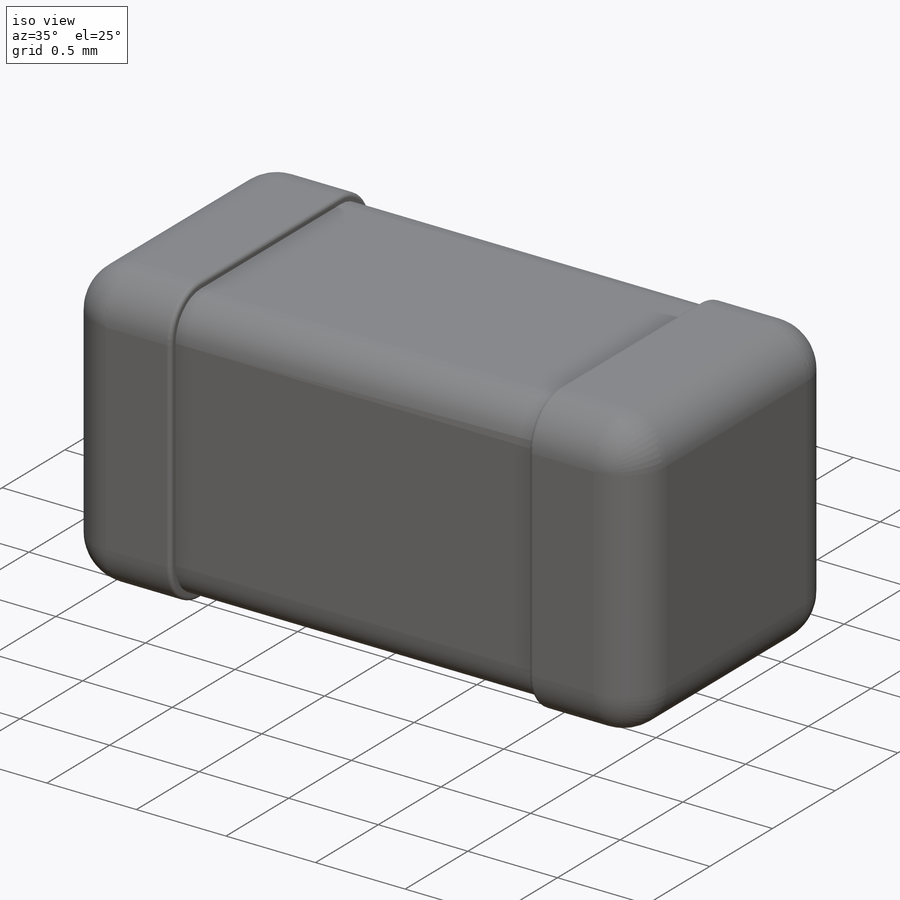
[diagram: iso view]
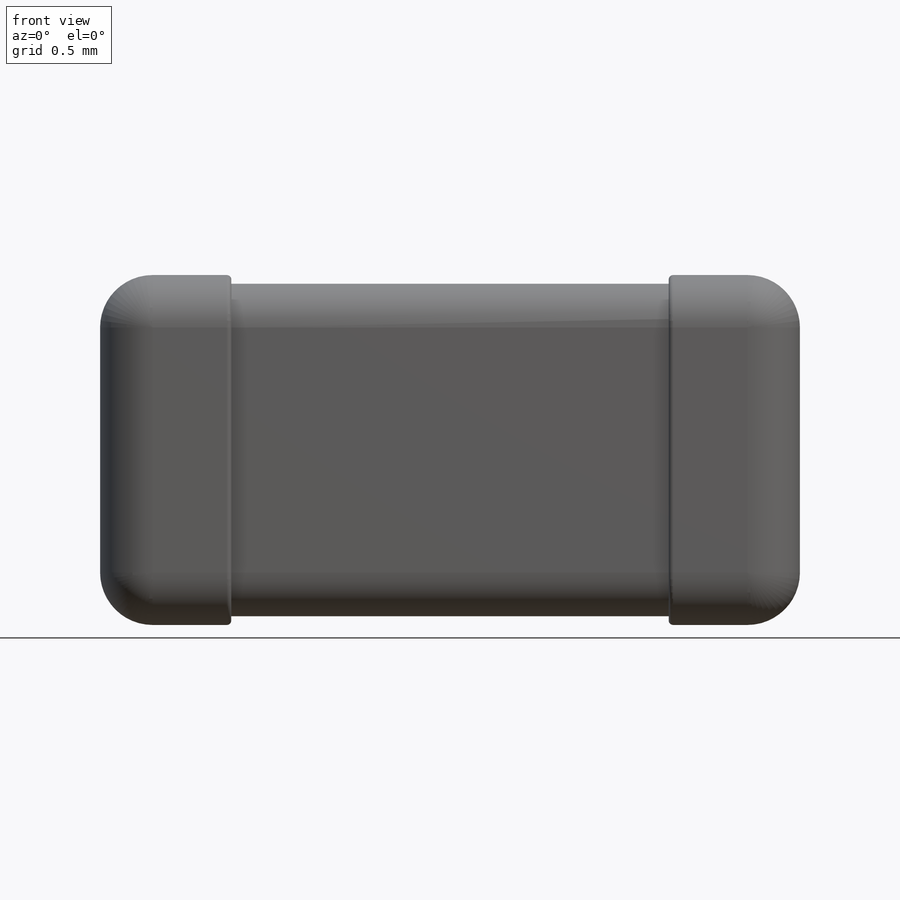
[diagram: front view]
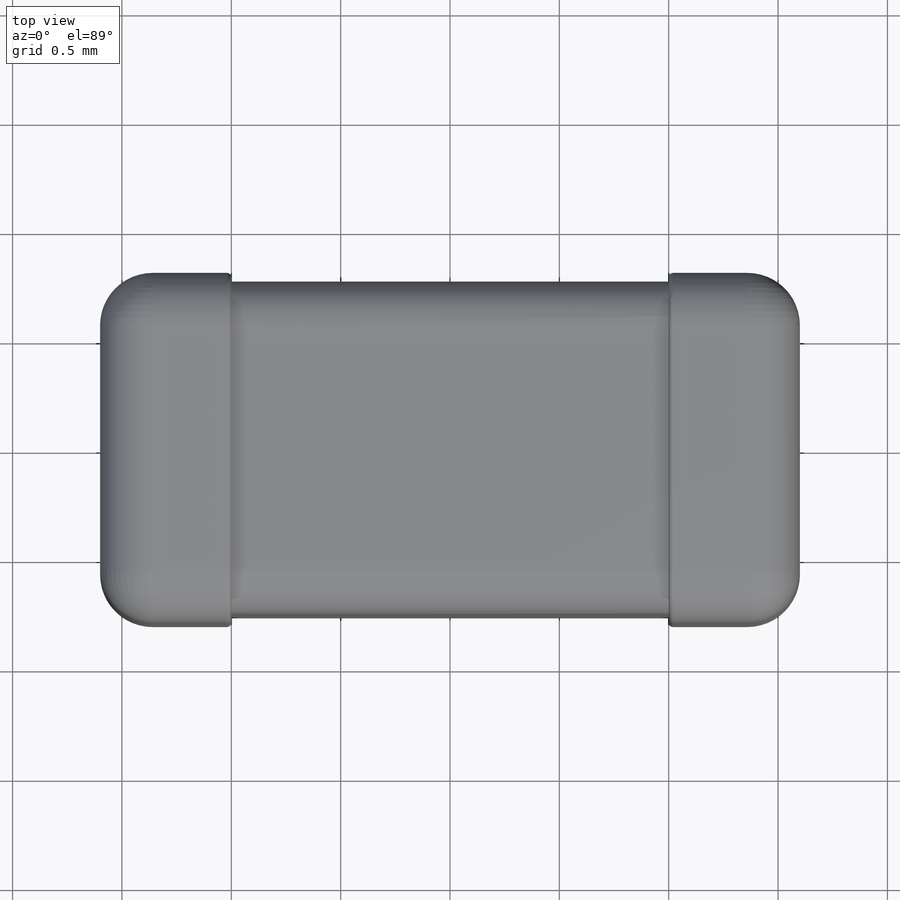
[diagram: top view]
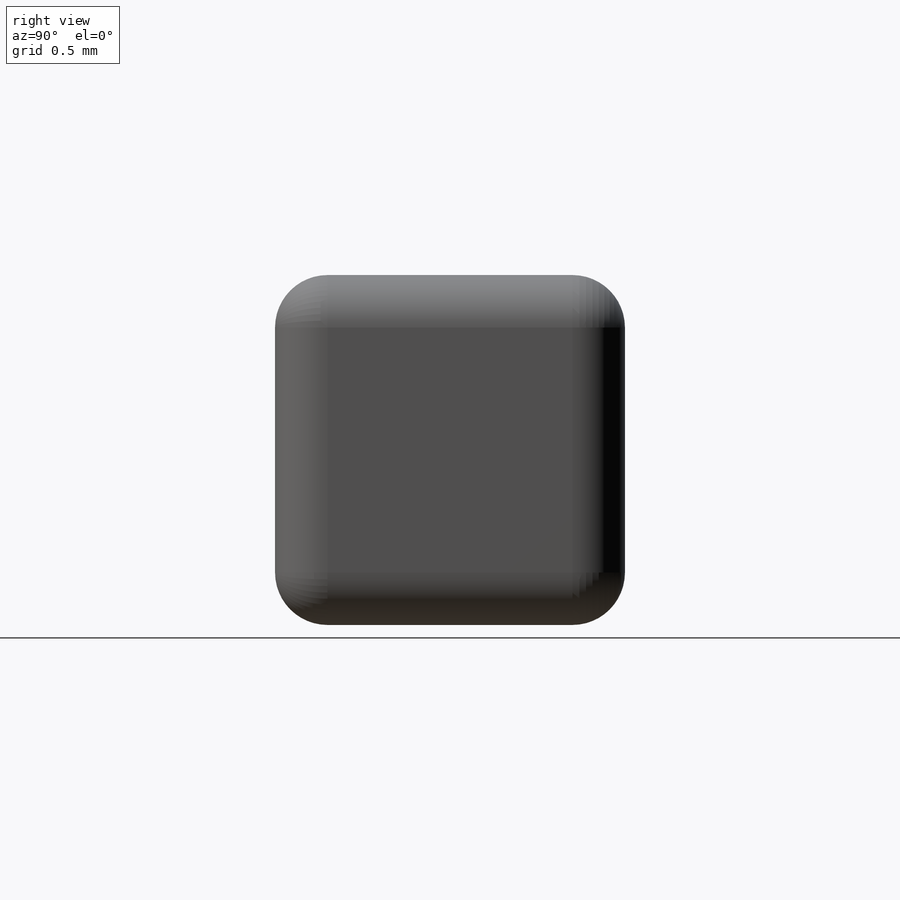
[diagram: right view]
SOLIDWORKS PART (.sldprt)
format: sldprt  version: not decoded by parser v0  size: 471,552 bytes
history: native  units: mm
features: fillet x3, sketch x2, material x1, extrude x1, cut_extrude x1 (+11 scaffold rows collapsed)
feature tree (19):
  scaffold x11  (default folders/planes/origin — collapsed)
  material  "Material <not specified>"
  sketch  "Sketch1"  dims[D1=1.6mm D2=3.2mm]
  extrude  "Boss-Extrude1"  Depth=1.6mm
  sketch  "Sketch3"  dims[D1=0.04mm]
  cut_extrude  "Cut-Extrude1"  Depth=0.6mm
  fillet  "Fillet1"  Radius=0.2mm
  fillet  "Fillet2"  Radius=0.24mm
  fillet  "Fillet3"  Radius=0.02mm
decode coverage: 7 of 7 modeling features carry decoded parameters
note: suppression state not decoded; provenance and decode notes live in map.json
